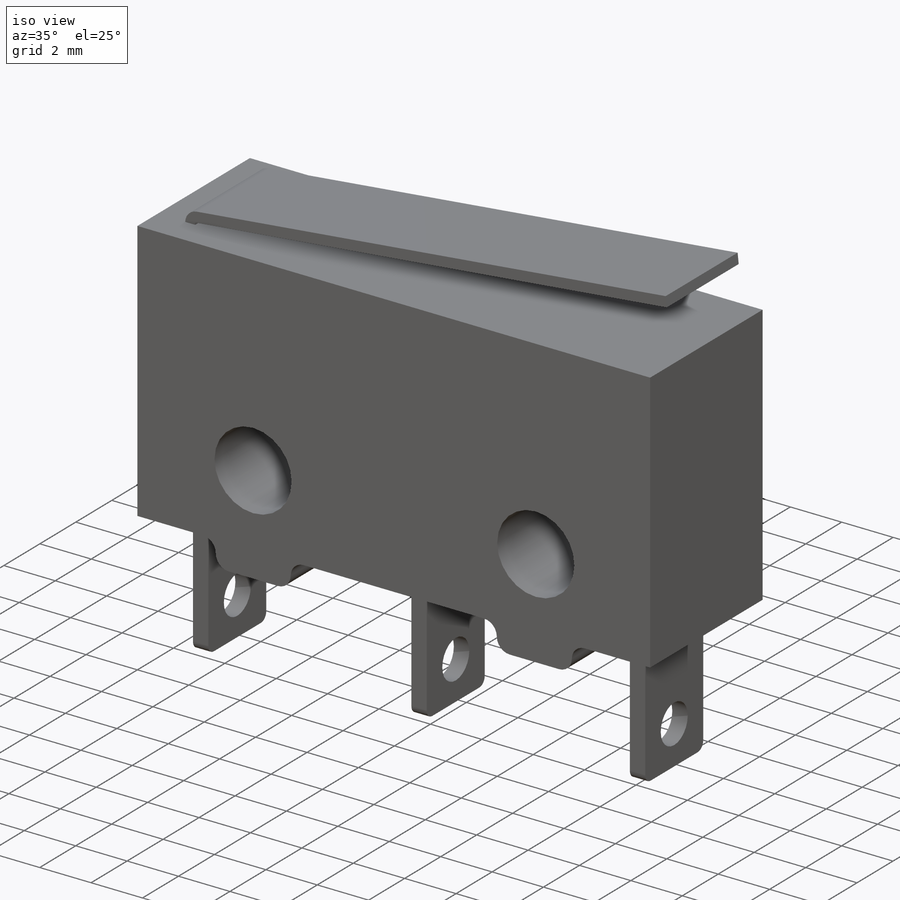
[diagram: iso view]
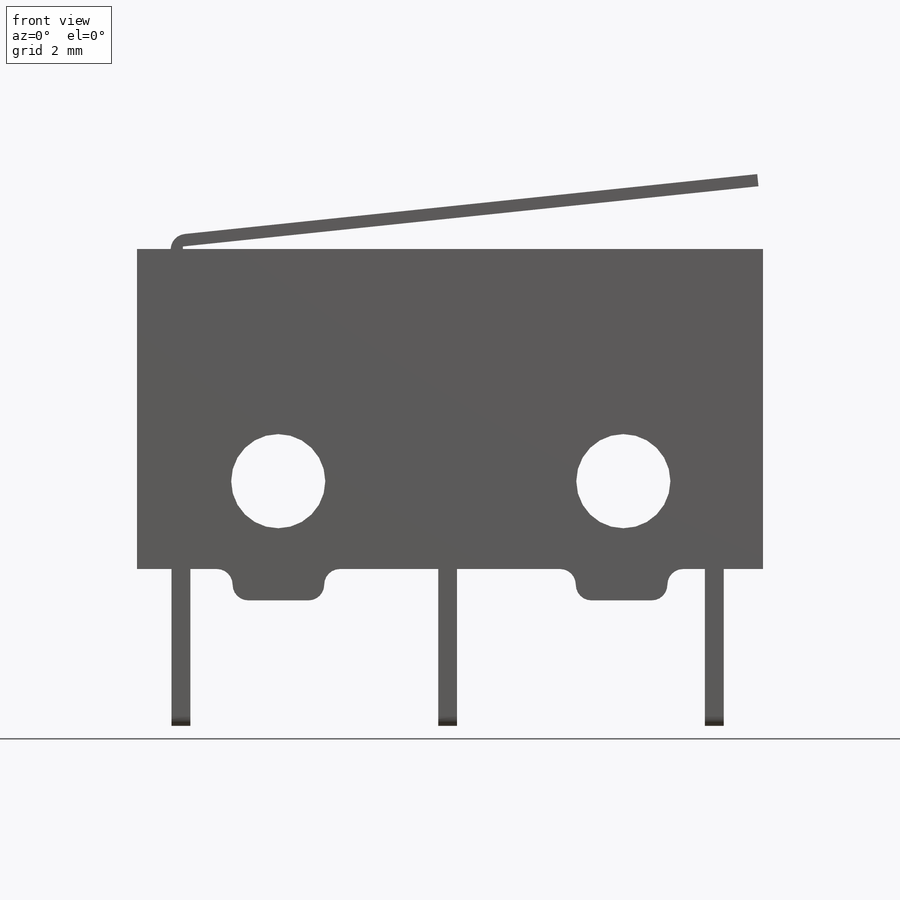
[diagram: front view]
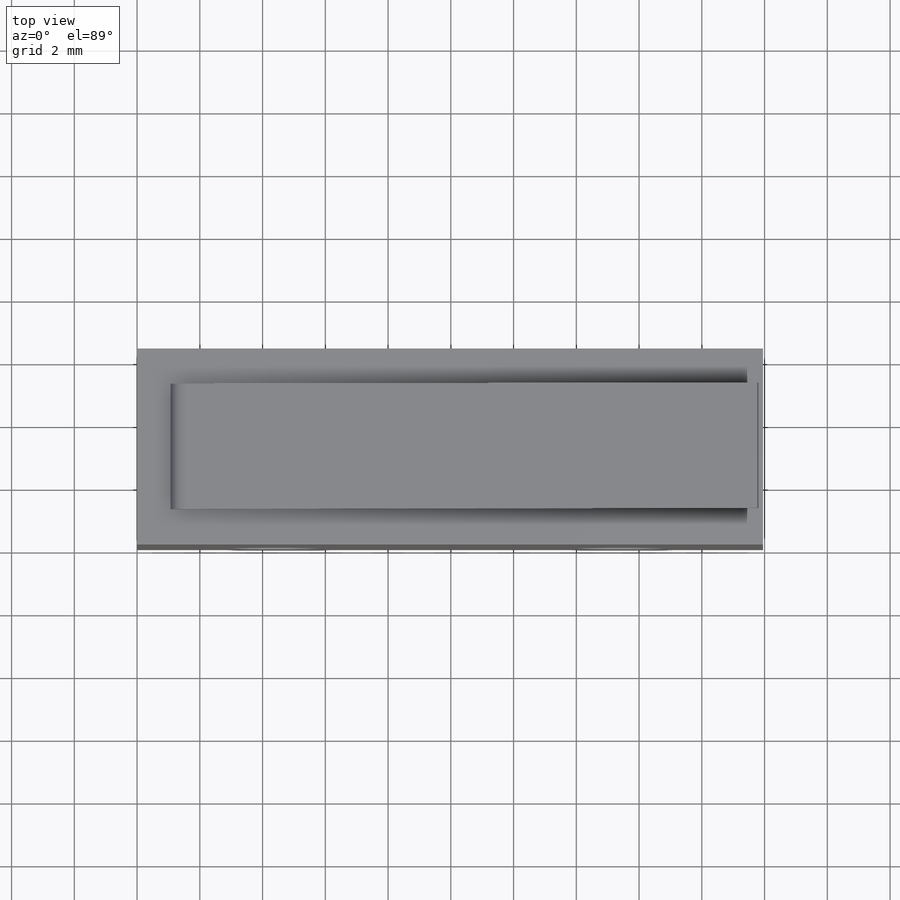
[diagram: top view]
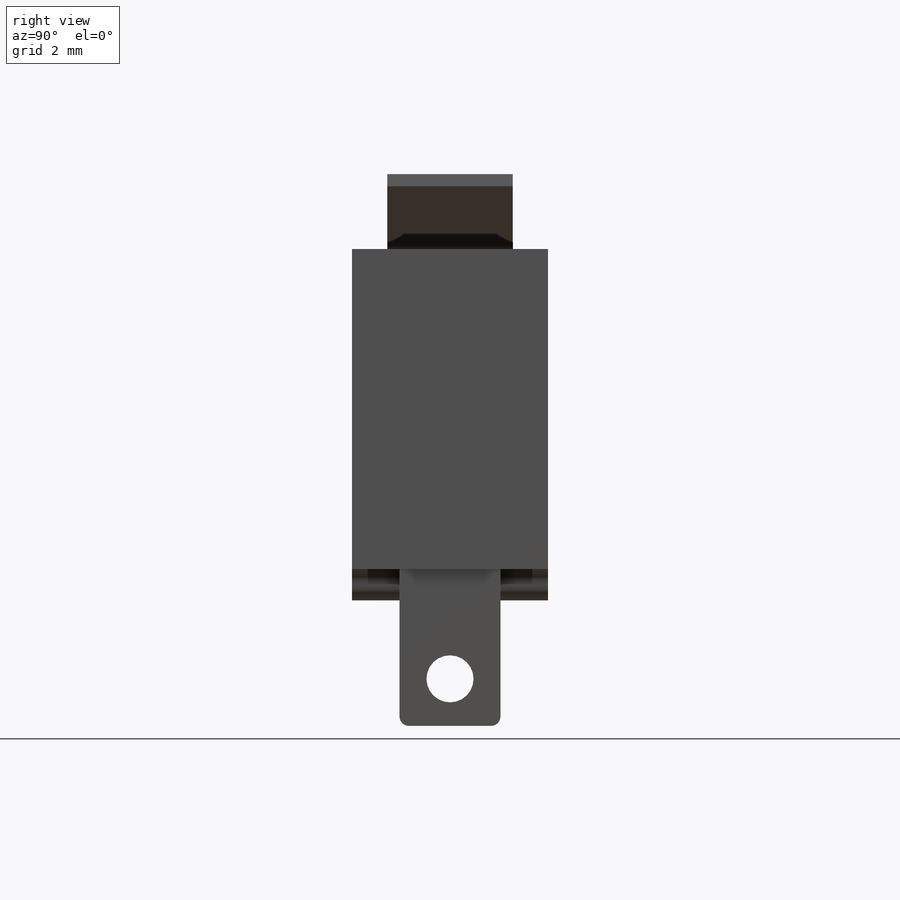
[diagram: right view]
SOLIDWORKS PART (.sldprt)
format: sldprt  version: not decoded by parser v0  size: 305,664 bytes
history: native  units: mm
features: sketch x6, extrude x4, fillet x4, cut_extrude x2, material x1, plane x1 (+12 scaffold rows collapsed)
feature tree (30):
  scaffold x12  (default folders/planes/origin — collapsed)
  material  "Material <not specified>"
  sketch  "Sketch1"  dims[D1=19.95mm D2=10.2mm]
  extrude  "Boss-Extrude1"  Depth=6.25mm
  sketch  "Sketch2"  dims[D1=3.0mm D2=3.0mm D3=2.8mm D4=11.0mm D5=4.5mm]
  cut_extrude  "Cut-Extrude1"  [1 undecoded]
  sketch  "Sketch3"  dims[D1=0.6mm D2=3.22mm D3=1.25mm D4=3.0]
  extrude  "Boss-Extrude2"  Depth=5mm
  fillet  "Fillet1"  Radius=0.3mm
  fillet  "Fillet2"  Radius=0.3mm
  sketch  "Sketch4"  dims[D1=1.5mm D2=1.5mm]
  cut_extrude  "Cut-Extrude2"  [1 undecoded]
  sketch  "Sketch5"
  extrude  "Boss-Extrude3"  Depth=1mm
  fillet  "Fillet3"  Radius=0.5mm
  plane  "Plane1"
  sketch  "Sketch6"  dims[D1=0.39mm D2=0.39mm D3=0.78mm D4=1.0mm D5=2.0mm]
  extrude  "Boss-Extrude4"  Depth=4mm
  fillet  "Fillet4"  Radius=0.5mm
decode coverage: 13 of 16 modeling features carry decoded parameters
note: 2 parameter values undecoded
note: suppression state not decoded; provenance and decode notes live in map.json
